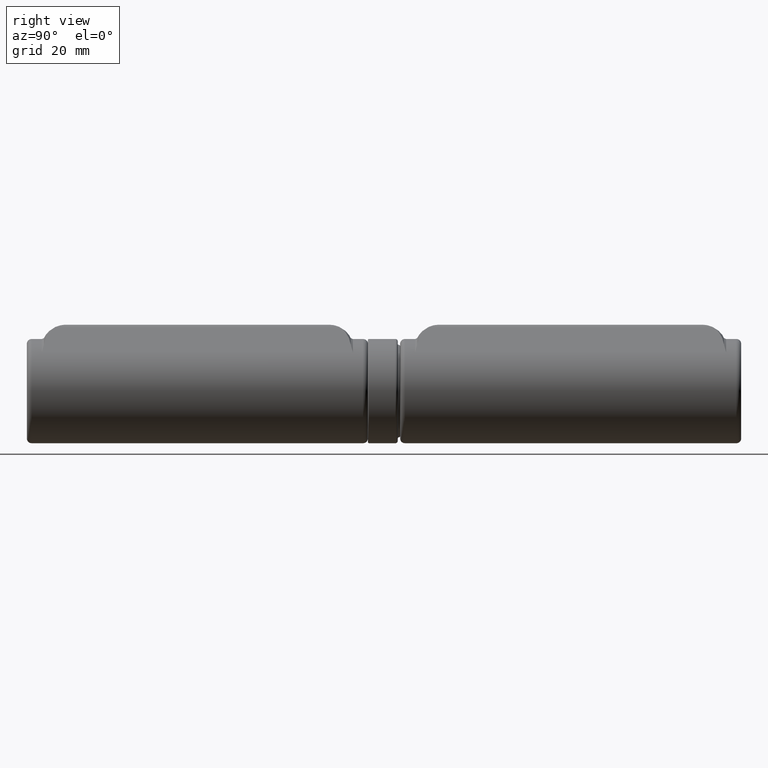
[diagram: clean part render]
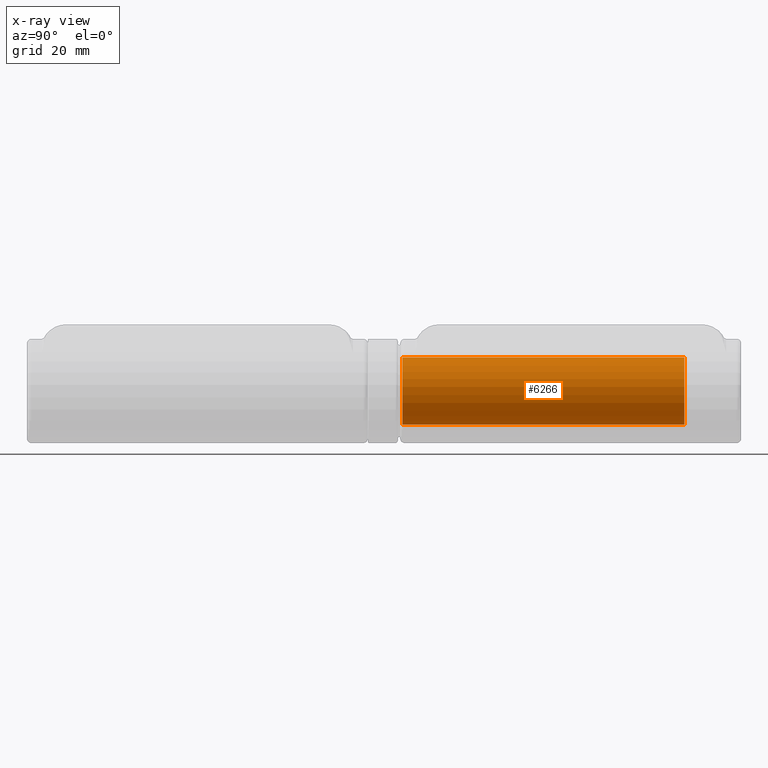
[diagram: x-ray — body ghosted, one internal face saturated and labeled with its STEP entity id]
A machine part, right view, then the same camera in x-ray: the body is ghosted and one INTERNAL B-rep face — a face not visible from any outside direction — is saturated and labeled: STEP entity #6266.
In plain terms, the highlighted cylindrical surface (bore or boss wall) has radius 7.1 mm, axis along (-0, -1, -0).
Its self-contained STEP definition (entity closure, byte-faithful):
#288 = DIRECTION ( 'NONE',  ( 0.000000000000000000, -1.000000000000000000, 0.000000000000000000 ) ) ;
#949 = ORIENTED_EDGE ( 'NONE', *, *, #5351, .T. ) ;
#1280 = EDGE_LOOP ( 'NONE', ( #5625 ) ) ;
#1350 = CARTESIAN_POINT ( 'NONE',  ( 0.000000000000000000, -35.49999999999999289, 7.099999999999999645 ) ) ;
#2930 = AXIS2_PLACEMENT_3D ( 'NONE', #11160, #6826, #6944 ) ;
#3444 = CARTESIAN_POINT ( 'NONE',  ( 0.000000000000000000, 24.00000000000000000, 0.000000000000000000 ) ) ;
#3601 = AXIS2_PLACEMENT_3D ( 'NONE', #6281, #288, #7542 ) ;
#5217 = AXIS2_PLACEMENT_3D ( 'NONE', #3444, #5234, #7748 ) ;
#5234 = DIRECTION ( 'NONE',  ( -0.000000000000000000, -1.000000000000000000, -0.000000000000000000 ) ) ;
#5351 = EDGE_CURVE ( 'NONE', #6597, #6597, #9617, .T. ) ;
#5625 = ORIENTED_EDGE ( 'NONE', *, *, #10554, .F. ) ;
#5768 = CARTESIAN_POINT ( 'NONE',  ( 0.000000000000000000, 24.00000000000000000, -7.099999999999999645 ) ) ;
#6266 = ADVANCED_FACE ( 'NONE', ( #9770, #9631 ), #10671, .F. ) ;
#6281 = CARTESIAN_POINT ( 'NONE',  ( 0.000000000000000000, -35.49999999999999289, 0.000000000000000000 ) ) ;
#6385 = CIRCLE ( 'NONE', #2930, 7.099999999999999645 ) ;
#6597 = VERTEX_POINT ( 'NONE', #1350 ) ;
#6826 = DIRECTION ( 'NONE',  ( 0.000000000000000000, -1.000000000000000000, 0.000000000000000000 ) ) ;
#6944 = DIRECTION ( 'NONE',  ( 0.000000000000000000, 0.000000000000000000, -1.000000000000000000 ) ) ;
#7024 = EDGE_LOOP ( 'NONE', ( #949 ) ) ;
#7542 = DIRECTION ( 'NONE',  ( 0.000000000000000000, 0.000000000000000000, 1.000000000000000000 ) ) ;
#7748 = DIRECTION ( 'NONE',  ( 0.000000000000000000, 0.000000000000000000, -1.000000000000000000 ) ) ;
#9617 = CIRCLE ( 'NONE', #3601, 7.099999999999999645 ) ;
#9631 = FACE_OUTER_BOUND ( 'NONE', #1280, .T. ) ;
#9770 = FACE_OUTER_BOUND ( 'NONE', #7024, .T. ) ;
#10554 = EDGE_CURVE ( 'NONE', #10921, #10921, #6385, .T. ) ;
#10671 = CYLINDRICAL_SURFACE ( 'NONE', #5217, 7.099999999999999645 ) ;
#10921 = VERTEX_POINT ( 'NONE', #5768 ) ;
#11160 = CARTESIAN_POINT ( 'NONE',  ( 0.000000000000000000, 24.00000000000000000, 0.000000000000000000 ) ) ;